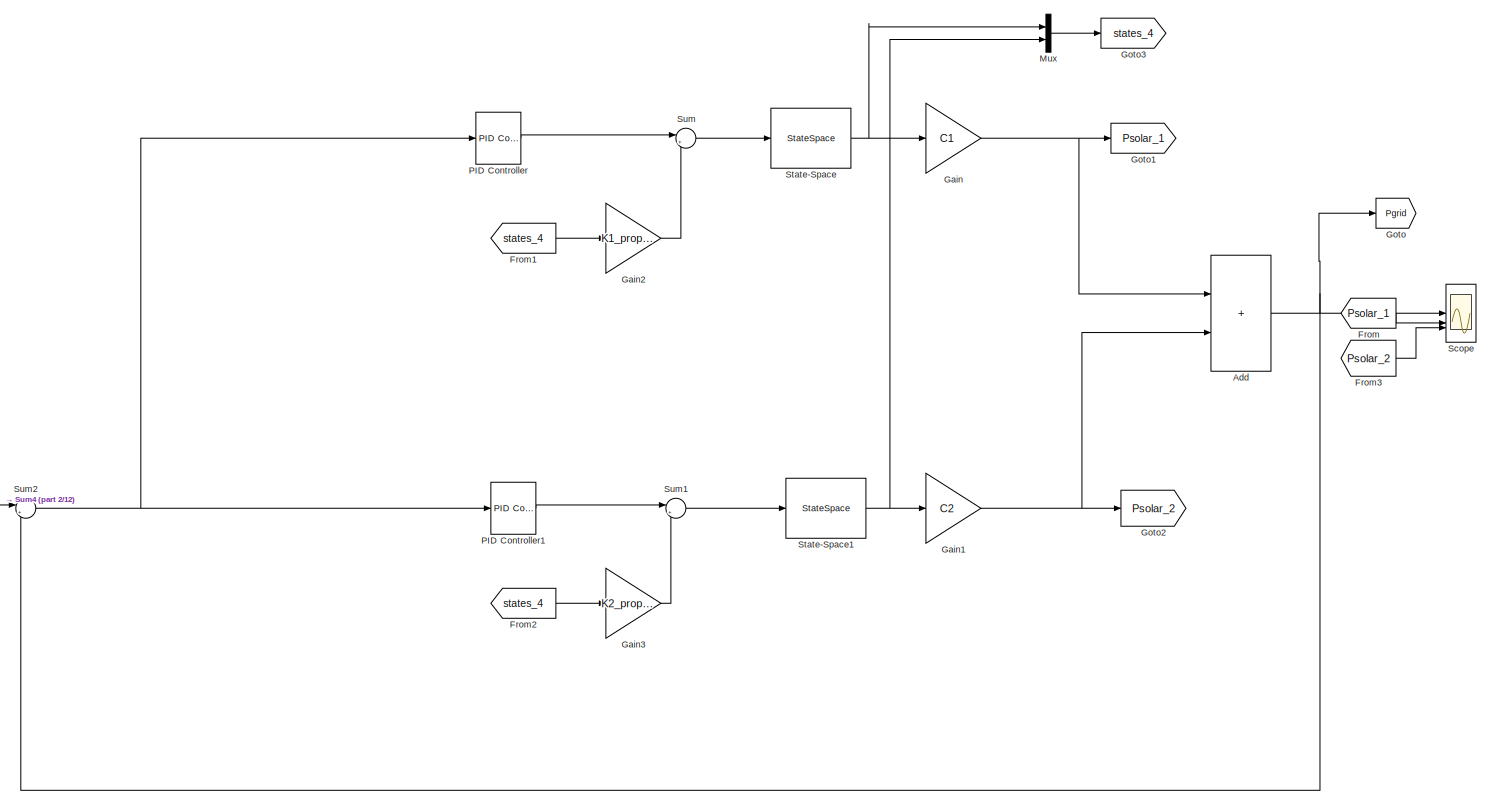
[diagram: root canvas - part 1/12, top center region]
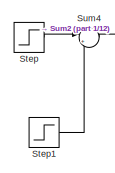
[diagram: root canvas - part 2/12, top left region]
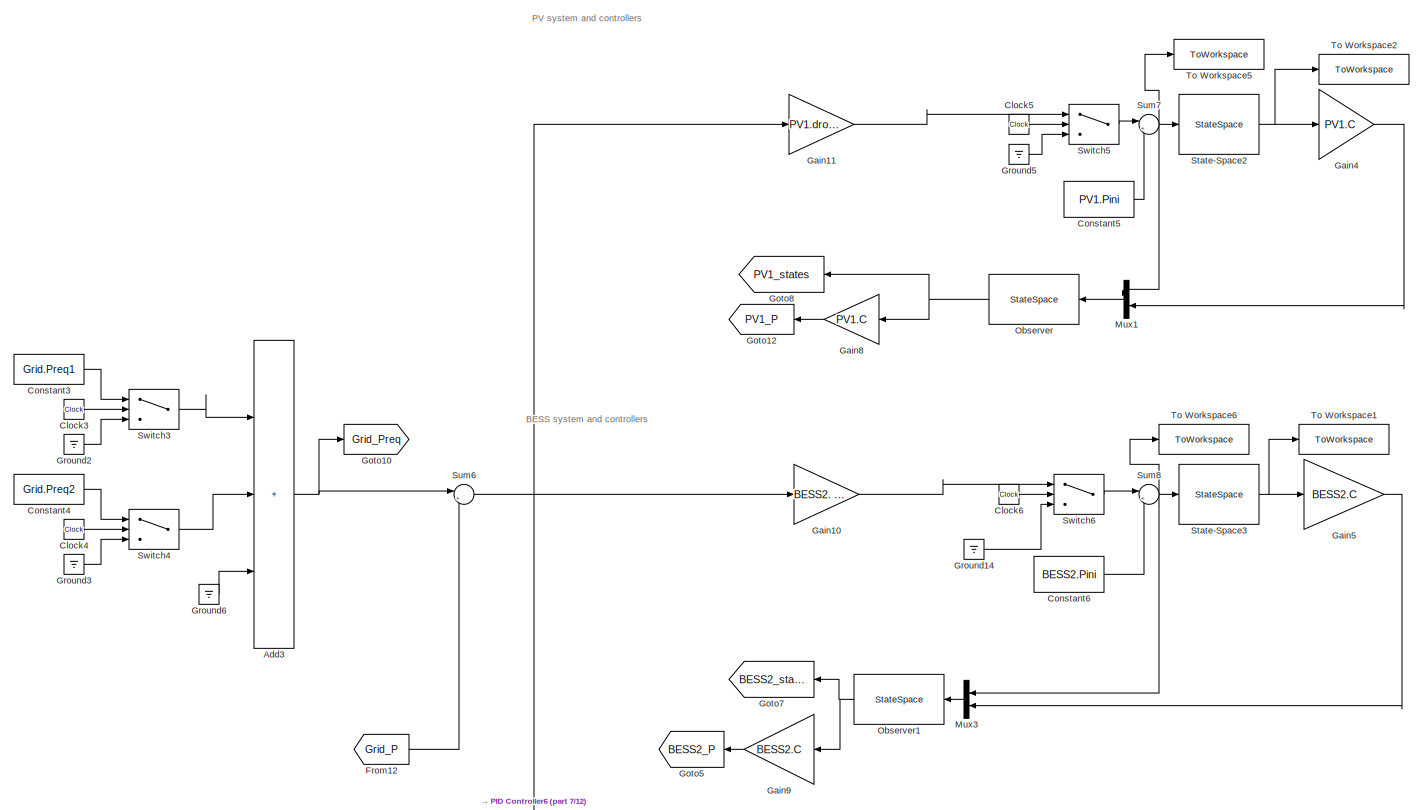
[diagram: root canvas - part 3/12, central region]
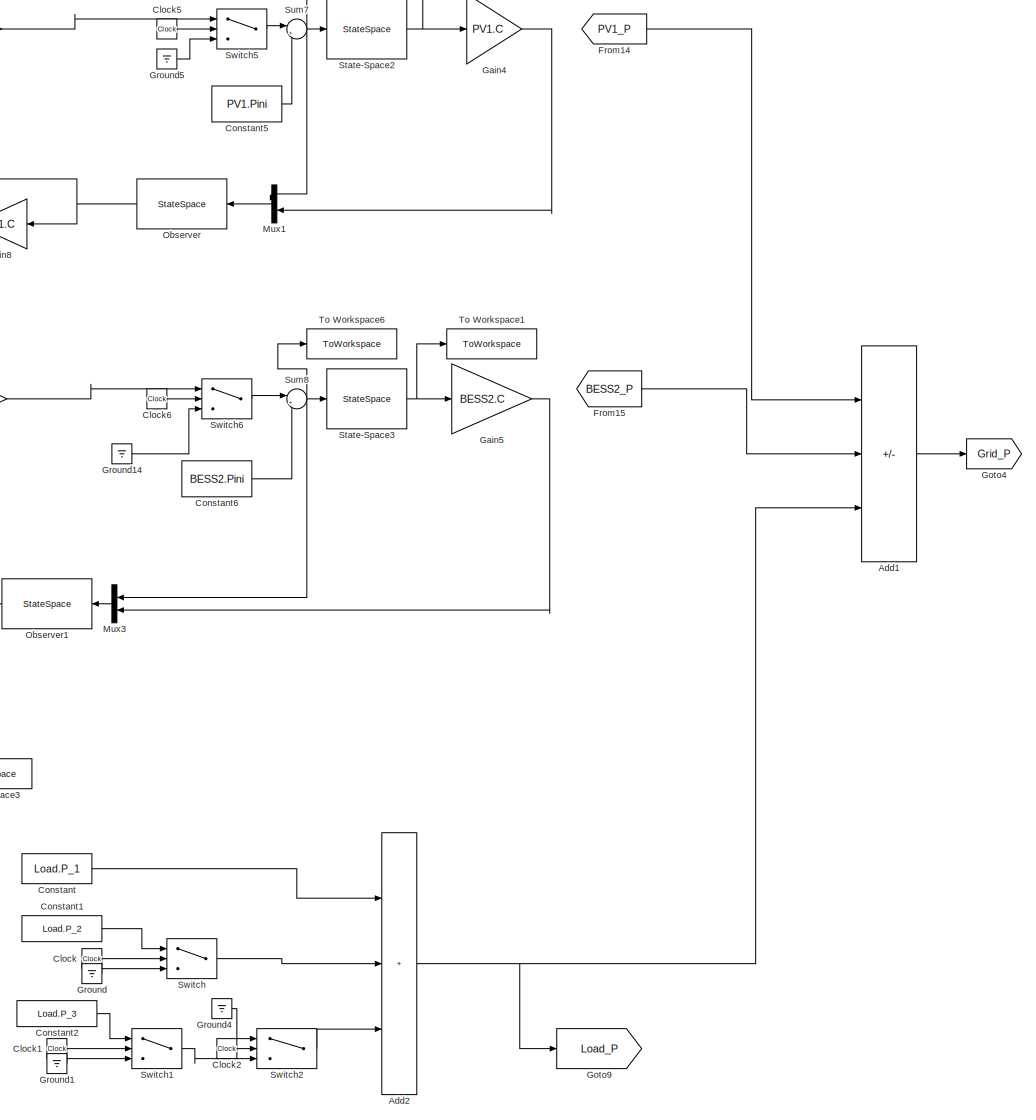
[diagram: root canvas - part 4/12, central region]
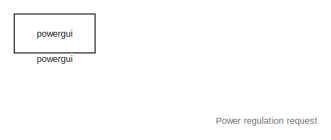
[diagram: root canvas - part 5/12, middle left region]
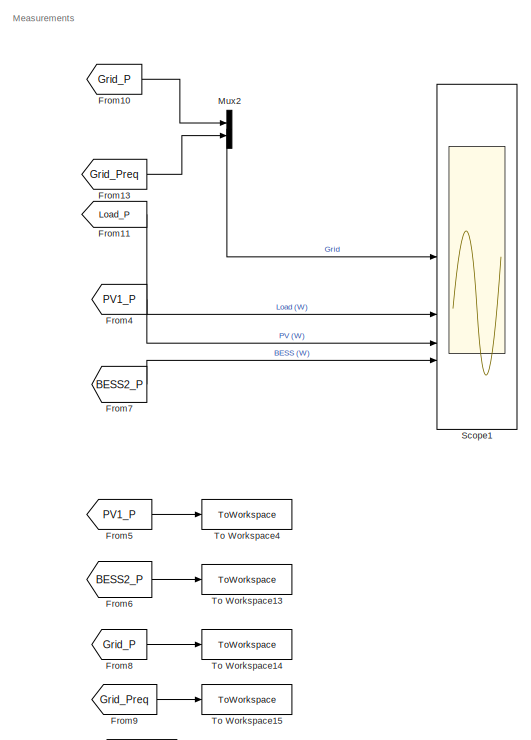
[diagram: root canvas - part 6/12, middle right region]
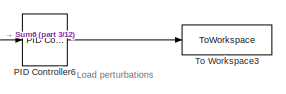
[diagram: root canvas - part 7/12, central region]
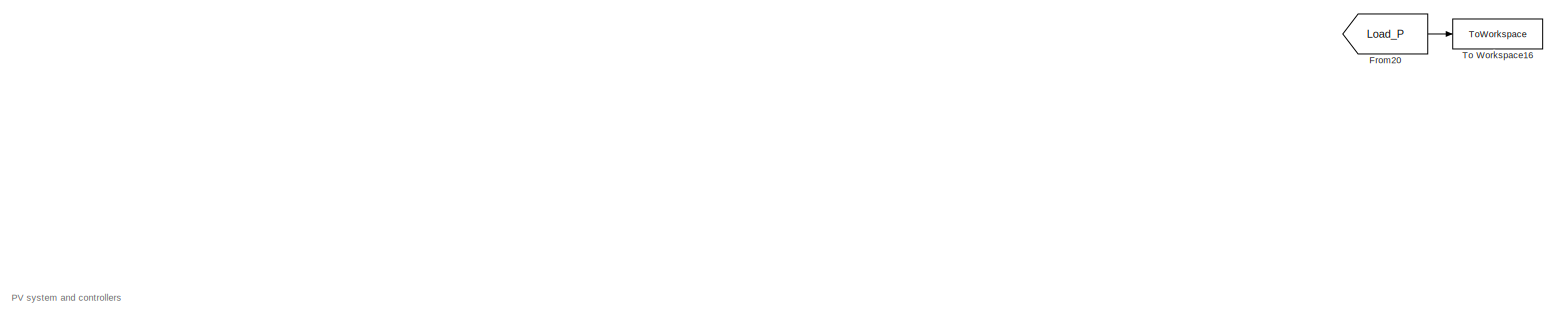
[diagram: root canvas - part 8/12, central region]
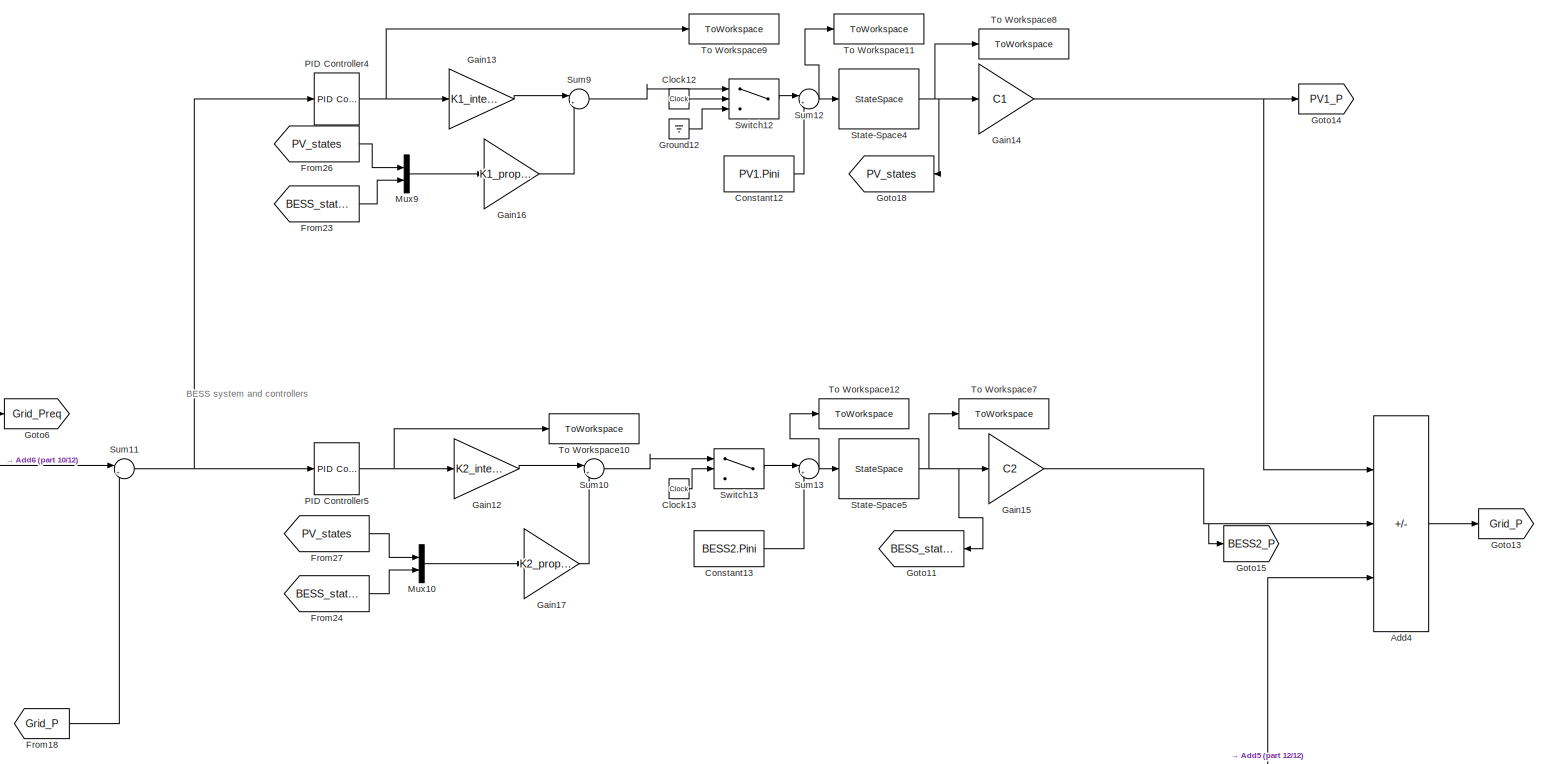
[diagram: root canvas - part 9/12, bottom center region]
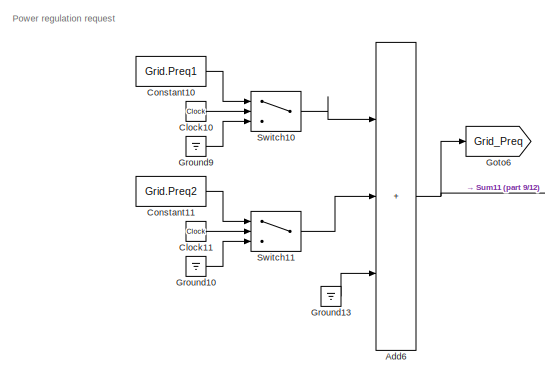
[diagram: root canvas - part 10/12, bottom left region]
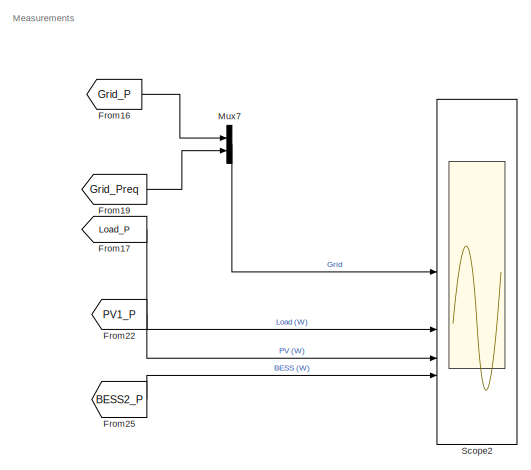
[diagram: root canvas - part 11/12, bottom right region]
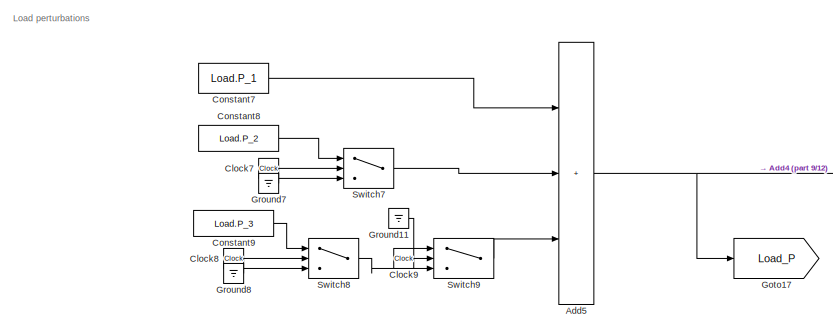
[diagram: root canvas - part 12/12, bottom center region]
MODEL slx_a68175e8a0a5
KIND model
CONFIG AbsTol = auto
CONFIG EnableMultiTasking = off
CONFIG FixedStep = auto
CONFIG MaxStep = auto
CONFIG MinStep = auto
CONFIG RelTol = 1e-3
CONFIG SampleTimeConstraint = Unconstrained
CONFIG SolverName = VariableStepAuto
CONFIG StartTime = 0.0
CONFIG StopTime = 6
BLOCK [Sum] Add
  Commented = on
  IconShape = rectangular
BLOCK [Sum] Add1
  IconShape = rectangular
  Inputs = ++-
BLOCK [Sum] Add2
  IconShape = rectangular
  Inputs = +++
BLOCK [Sum] Add3
  IconShape = rectangular
  Inputs = +++
BLOCK [Sum] Add4
  Commented = on
  IconShape = rectangular
  Inputs = ++-
BLOCK [Sum] Add5
  Commented = on
  IconShape = rectangular
  Inputs = +++
BLOCK [Sum] Add6
  Commented = on
  IconShape = rectangular
  Inputs = +++
BLOCK [Clock] Clock
BLOCK [Clock] Clock1
BLOCK [Clock] Clock10
  Commented = on
BLOCK [Clock] Clock11
  Commented = on
BLOCK [Clock] Clock12
  Commented = on
BLOCK [Clock] Clock13
  Commented = on
BLOCK [Clock] Clock2
BLOCK [Clock] Clock3
BLOCK [Clock] Clock4
BLOCK [Clock] Clock5
BLOCK [Clock] Clock6
BLOCK [Clock] Clock7
  Commented = on
BLOCK [Clock] Clock8
  Commented = on
BLOCK [Clock] Clock9
  Commented = on
BLOCK [Constant] Constant
  Value = Load.P_1
BLOCK [Constant] Constant1
  Value = Load.P_2
BLOCK [Constant] Constant10
  Commented = on
  Value = Grid.Preq1
BLOCK [Constant] Constant11
  Commented = on
  Value = Grid.Preq2
BLOCK [Constant] Constant12
  Commented = on
  Value = PV1.Pini
BLOCK [Constant] Constant13
  Commented = on
  Value = BESS2.Pini
BLOCK [Constant] Constant2
  Value = Load.P_3
BLOCK [Constant] Constant3
  Value = Grid.Preq1
BLOCK [Constant] Constant4
  Value = Grid.Preq2
BLOCK [Constant] Constant5
  Value = PV1.Pini
BLOCK [Constant] Constant6
  Value = BESS2.Pini
BLOCK [Constant] Constant7
  Commented = on
  Value = Load.P_1
BLOCK [Constant] Constant8
  Commented = on
  Value = Load.P_2
BLOCK [Constant] Constant9
  Commented = on
  Value = Load.P_3
BLOCK [From] From
  Commented = on
  GotoTag = Psolar_1
BLOCK [From] From1
  Commented = on
  GotoTag = states_4
BLOCK [From] From10
  GotoTag = Grid_P
BLOCK [From] From11
  GotoTag = Load_P
BLOCK [From] From12
  GotoTag = Grid_P
BLOCK [From] From13
  GotoTag = Grid_Preq
BLOCK [From] From14
  GotoTag = PV1_P
BLOCK [From] From15
  GotoTag = BESS2_P
BLOCK [From] From16
  Commented = on
  GotoTag = Grid_P
BLOCK [From] From17
  Commented = on
  GotoTag = Load_P
BLOCK [From] From18
  Commented = on
  GotoTag = Grid_P
BLOCK [From] From19
  Commented = on
  GotoTag = Grid_Preq
BLOCK [From] From2
  Commented = on
  GotoTag = states_4
BLOCK [From] From20
  GotoTag = Load_P
BLOCK [From] From22
  Commented = on
  GotoTag = PV1_P
BLOCK [From] From23
  Commented = on
  GotoTag = BESS_states
BLOCK [From] From24
  Commented = on
  GotoTag = BESS_states
BLOCK [From] From25
  Commented = on
  GotoTag = BESS2_P
BLOCK [From] From26
  Commented = on
  GotoTag = PV_states
BLOCK [From] From27
  Commented = on
  GotoTag = PV_states
BLOCK [From] From3
  Commented = on
  GotoTag = Psolar_2
BLOCK [From] From4
  GotoTag = PV1_P
BLOCK [From] From5
  GotoTag = PV1_P
BLOCK [From] From6
  GotoTag = BESS2_P
BLOCK [From] From7
  GotoTag = BESS2_P
BLOCK [From] From8
  GotoTag = Grid_P
BLOCK [From] From9
  GotoTag = Grid_Preq
BLOCK [Gain] Gain
  Commented = on
  Gain = C1
  Multiplication = Matrix(K*u)
BLOCK [Gain] Gain1
  Commented = on
  Gain = C2
  Multiplication = Matrix(K*u)
BLOCK [Gain] Gain10
  Gain = BESS2. droop
BLOCK [Gain] Gain11
  Gain = PV1.droop
BLOCK [Gain] Gain12
  Commented = on
  Gain = K2_integral
BLOCK [Gain] Gain13
  Commented = on
  Gain = K1_integral
BLOCK [Gain] Gain14
  Commented = on
  Gain = C1
  Multiplication = Matrix(K*u)
BLOCK [Gain] Gain15
  Commented = on
  Gain = C2
  Multiplication = Matrix(K*u)
BLOCK [Gain] Gain16
  Commented = on
  Gain = K1_proportional
  Multiplication = Matrix(K*u)
BLOCK [Gain] Gain17
  Commented = on
  Gain = K2_proportional
  Multiplication = Matrix(K*u)
BLOCK [Gain] Gain2
  Commented = on
  Gain = K1_proportional
  Multiplication = Matrix(K*u)
BLOCK [Gain] Gain3
  Commented = on
  Gain = K2_proportional
  Multiplication = Matrix(K*u)
BLOCK [Gain] Gain4
  Gain = PV1.C
  Multiplication = Matrix(K*u)
BLOCK [Gain] Gain5
  Gain = BESS2.C
  Multiplication = Matrix(K*u)
BLOCK [Gain] Gain8
  Gain = PV1.C
  Multiplication = Matrix(K*u)
BLOCK [Gain] Gain9
  Gain = BESS2.C
  Multiplication = Matrix(K*u)
BLOCK [Goto] Goto
  Commented = on
  GotoTag = Pgrid
BLOCK [Goto] Goto1
  Commented = on
  GotoTag = Psolar_1
BLOCK [Goto] Goto10
  GotoTag = Grid_Preq
BLOCK [Goto] Goto11
  Commented = on
  GotoTag = BESS_states
BLOCK [Goto] Goto12
  GotoTag = PV1_P
BLOCK [Goto] Goto13
  Commented = on
  GotoTag = Grid_P
BLOCK [Goto] Goto14
  Commented = on
  GotoTag = PV1_P
BLOCK [Goto] Goto15
  Commented = on
  GotoTag = BESS2_P
BLOCK [Goto] Goto17
  Commented = on
  GotoTag = Load_P
BLOCK [Goto] Goto18
  Commented = on
  GotoTag = PV_states
BLOCK [Goto] Goto2
  Commented = on
  GotoTag = Psolar_2
BLOCK [Goto] Goto3
  Commented = on
  GotoTag = states_4
BLOCK [Goto] Goto4
  GotoTag = Grid_P
BLOCK [Goto] Goto5
  GotoTag = BESS2_P
BLOCK [Goto] Goto6
  Commented = on
  GotoTag = Grid_Preq
BLOCK [Goto] Goto7
  GotoTag = BESS2_states
BLOCK [Goto] Goto8
  GotoTag = PV1_states
BLOCK [Goto] Goto9
  GotoTag = Load_P
BLOCK [Ground] Ground
BLOCK [Ground] Ground1
BLOCK [Ground] Ground10
  Commented = on
BLOCK [Ground] Ground11
  Commented = on
BLOCK [Ground] Ground12
  Commented = on
BLOCK [Ground] Ground13
  Commented = on
BLOCK [Ground] Ground14
BLOCK [Ground] Ground2
BLOCK [Ground] Ground3
BLOCK [Ground] Ground4
BLOCK [Ground] Ground5
BLOCK [Ground] Ground6
BLOCK [Ground] Ground7
  Commented = on
BLOCK [Ground] Ground8
  Commented = on
BLOCK [Ground] Ground9
  Commented = on
BLOCK [Mux] Mux
  Commented = on
  DisplayOption = bar
  Inputs = 2
BLOCK [Mux] Mux1
  DisplayOption = bar
  Inputs = 2
BLOCK [Mux] Mux10
  Commented = on
  DisplayOption = bar
  Inputs = 2
BLOCK [Mux] Mux2
  DisplayOption = bar
  Inputs = 2
BLOCK [Mux] Mux3
  DisplayOption = bar
  Inputs = 2
BLOCK [Mux] Mux7
  Commented = on
  DisplayOption = bar
  Inputs = 2
BLOCK [Mux] Mux9
  Commented = on
  DisplayOption = bar
  Inputs = 2
BLOCK [StateSpace] Observer
  A = PV1.kf_As
  B = PV1.kf_Bs
  C = PV1.kf_Cs
  D = PV1.kf_Ds
  InitialCondition = 0
BLOCK [StateSpace] Observer1
  A = BESS2.kf_As
  B = BESS2.kf_Bs
  C = BESS2.kf_Cs
  D = BESS2.kf_Ds
  InitialCondition = 0
BLOCK [Reference] PID Controller  REF=slpidlib/PID Controller
  Commented = on
  LibrarySourceBlock = simulink/Continuous/PID Controller
  SourceBlock = slpidlib/PID Controller
  SourceType = PID 1dof
BLOCK [Reference] PID Controller1  REF=slpidlib/PID Controller
  Commented = on
  LibrarySourceBlock = simulink/Continuous/PID Controller
  SourceBlock = slpidlib/PID Controller
  SourceType = PID 1dof
BLOCK [Reference] PID Controller4  REF=slpidlib/PID Controller
  Commented = on
  LibrarySourceBlock = simulink/Continuous/PID Controller
  SourceBlock = slpidlib/PID Controller
  SourceType = PID 1dof
BLOCK [Reference] PID Controller5  REF=slpidlib/PID Controller
  Commented = on
  LibrarySourceBlock = simulink/Continuous/PID Controller
  SourceBlock = slpidlib/PID Controller
  SourceType = PID 1dof
BLOCK [Reference] PID Controller6  REF=slpidlib/PID Controller
  LibrarySourceBlock = simulink/Continuous/PID Controller
  SourceBlock = slpidlib/PID Controller
  SourceType = PID 1dof
BLOCK [Scope] Scope
  Commented = on
  Floating = off
  NumInputPorts = 3
  ScopeSpecificationString = Simulink.scopes.TimeScopeBlockCfg('CurrentConfiguration', extmgr.ConfigurationSet(extmgr.Configuration('Core','General UI',true),extmgr.Configuration('Core','Source UI',true),extmgr.Configuration('Sources','WiredSimulink',true),extmgr.Configuration('Visuals','Time Domain',true,'SerializedDisplays',{struct('MinYLimReal','-249795.72347','MaxYLimReal','2248161.51121','YLabelReal','','MinYLimMag','   ...<+2741ch>
BLOCK [Scope] Scope1
  Floating = off
  NumInputPorts = 4
  ScopeSpecificationString = Simulink.scopes.TimeScopeBlockCfg('CurrentConfiguration', extmgr.ConfigurationSet(extmgr.Configuration('Core','General UI',true,'FigureColor',[1 1 1]),extmgr.Configuration('Core','Source UI',true),extmgr.Configuration('Sources','WiredSimulink',true,'DataLoggingVariableName','ScopeData1'),extmgr.Configuration('Visuals','Time Domain',true,'SerializedDisplays',{struct('MinYLimReal','-7731770.89309','...<+4946ch>
BLOCK [Scope] Scope2
  Commented = on
  Floating = off
  NumInputPorts = 4
  ScopeSpecificationString = Simulink.scopes.TimeScopeBlockCfg('CurrentConfiguration', extmgr.ConfigurationSet(extmgr.Configuration('Core','General UI',true),extmgr.Configuration('Core','Source UI',true),extmgr.Configuration('Sources','WiredSimulink',true,'DataLoggingVariableName','ScopeData1'),extmgr.Configuration('Visuals','Time Domain',true,'SerializedDisplays',{struct('MinYLimReal','-7624859.51592','MaxYLimReal','18623735...<+3750ch>
BLOCK [StateSpace] State-Space
  A = A1
  B = [1; 0]
  C = [1 0;0 1]
  Commented = on
  D = zeros(2,1)
  InitialCondition = 0
BLOCK [StateSpace] State-Space1
  A = A2
  B = [1; 0]
  C = [1 0;0 1]
  Commented = on
  D = zeros(2,1)
  InitialCondition = 0
BLOCK [StateSpace] State-Space2
  A = PV1.A
  B = PV1.B
  C = eye(2,2)
  D = zeros(2,1)
  InitialCondition = 0
BLOCK [StateSpace] State-Space3
  A = BESS2.A
  B = BESS2.B
  C = eye(2,2)
  D = zeros(2,1)
  InitialCondition = 0
BLOCK [StateSpace] State-Space4
  A = A1
  B = B1
  C = eye(2,2)
  Commented = on
  D = zeros(2,1)
  InitialCondition = 0
BLOCK [StateSpace] State-Space5
  A = A2
  B = B2
  C = eye(2,2)
  Commented = on
  D = zeros(2,1)
  InitialCondition = 0
BLOCK [Step] Step
  After = 1.5*10^6
  Commented = on
  SampleTime = 0
BLOCK [Step] Step1
  After = 0.5*10^6
  Commented = on
  SampleTime = 0
  Time = 15
BLOCK [Sum] Sum
  Commented = on
  Inputs = |++
BLOCK [Sum] Sum1
  Commented = on
  Inputs = |++
BLOCK [Sum] Sum10
  Commented = on
  Inputs = |++
BLOCK [Sum] Sum11
  Commented = on
  Inputs = |+-
BLOCK [Sum] Sum12
  Commented = on
  Inputs = |++
BLOCK [Sum] Sum13
  Commented = on
  Inputs = |++
BLOCK [Sum] Sum2
  Commented = on
  Inputs = |+-
BLOCK [Sum] Sum4
  Commented = on
  Inputs = |++
BLOCK [Sum] Sum6
  Inputs = |+-
BLOCK [Sum] Sum7
  Inputs = |++
BLOCK [Sum] Sum8
  Inputs = |++
BLOCK [Sum] Sum9
  Commented = on
  Inputs = |++
BLOCK [Switch] Switch
  InputSameDT = off
  SaturateOnIntegerOverflow = off
  Threshold = Load.sw2_closed
BLOCK [Switch] Switch1
  InputSameDT = off
  SaturateOnIntegerOverflow = off
  Threshold = Load.sw3_closed
BLOCK [Switch] Switch10
  Commented = on
  InputSameDT = off
  SaturateOnIntegerOverflow = off
  Threshold = Grid.Time1
BLOCK [Switch] Switch11
  Commented = on
  InputSameDT = off
  SaturateOnIntegerOverflow = off
  Threshold = Grid.Time2
BLOCK [Switch] Switch12
  Commented = on
  InputSameDT = off
  SaturateOnIntegerOverflow = off
  Threshold = Grid.Time0
BLOCK [Switch] Switch13
  Commented = on
  InputSameDT = off
  SaturateOnIntegerOverflow = off
  Threshold = Grid.Time0
BLOCK [Switch] Switch2
  InputSameDT = off
  SaturateOnIntegerOverflow = off
  Threshold = Load.sw3_open
BLOCK [Switch] Switch3
  InputSameDT = off
  SaturateOnIntegerOverflow = off
  Threshold = Grid.Time1-0.001
BLOCK [Switch] Switch4
  InputSameDT = off
  SaturateOnIntegerOverflow = off
  Threshold = Grid.Time2
BLOCK [Switch] Switch5
  InputSameDT = off
  SaturateOnIntegerOverflow = off
  Threshold = Grid.Time1
BLOCK [Switch] Switch6
  InputSameDT = off
  SaturateOnIntegerOverflow = off
  Threshold = Grid.Time1
BLOCK [Switch] Switch7
  Commented = on
  InputSameDT = off
  SaturateOnIntegerOverflow = off
  Threshold = Load.sw2_closed
BLOCK [Switch] Switch8
  Commented = on
  InputSameDT = off
  SaturateOnIntegerOverflow = off
  Threshold = Load.sw3_closed
BLOCK [Switch] Switch9
  Commented = on
  InputSameDT = off
  SaturateOnIntegerOverflow = off
  Threshold = Load.sw3_open
BLOCK [ToWorkspace] To Workspace1
  FixptAsFi = on
  MaxDataPoints = inf
  SampleTime = Ts
  SaveFormat = Timeseries
  VariableName = x_bess2
BLOCK [ToWorkspace] To Workspace10
  Commented = on
  FixptAsFi = on
  MaxDataPoints = inf
  SampleTime = Ts
  SaveFormat = Timeseries
  VariableName = w_bess
BLOCK [ToWorkspace] To Workspace11
  Commented = on
  FixptAsFi = on
  MaxDataPoints = inf
  SampleTime = Ts
  SaveFormat = Timeseries
  VariableName = u_pv
BLOCK [ToWorkspace] To Workspace12
  Commented = on
  FixptAsFi = on
  MaxDataPoints = inf
  SampleTime = Ts
  SaveFormat = Timeseries
  VariableName = u_bess
BLOCK [ToWorkspace] To Workspace13
  FixptAsFi = on
  MaxDataPoints = inf
  SampleTime = Ts
  SaveFormat = Timeseries
  VariableName = BESS2_P
BLOCK [ToWorkspace] To Workspace14
  FixptAsFi = on
  MaxDataPoints = inf
  SampleTime = Ts
  SaveFormat = Timeseries
  VariableName = Grid_P
BLOCK [ToWorkspace] To Workspace15
  FixptAsFi = on
  MaxDataPoints = inf
  SampleTime = Ts
  SaveFormat = Timeseries
  VariableName = Grid_Preq
BLOCK [ToWorkspace] To Workspace16
  FixptAsFi = on
  MaxDataPoints = inf
  SampleTime = Ts
  SaveFormat = Timeseries
  VariableName = Load_P
BLOCK [ToWorkspace] To Workspace2
  FixptAsFi = on
  MaxDataPoints = inf
  SampleTime = Ts
  SaveFormat = Timeseries
  VariableName = x_pv1
BLOCK [ToWorkspace] To Workspace3
  FixptAsFi = on
  MaxDataPoints = inf
  SampleTime = Ts
  SaveFormat = Timeseries
  VariableName = w
BLOCK [ToWorkspace] To Workspace4
  FixptAsFi = on
  MaxDataPoints = inf
  SampleTime = Ts
  SaveFormat = Timeseries
  VariableName = PV1_P
BLOCK [ToWorkspace] To Workspace5
  FixptAsFi = on
  MaxDataPoints = inf
  SampleTime = Ts
  SaveFormat = Timeseries
  VariableName = u_pv1
BLOCK [ToWorkspace] To Workspace6
  FixptAsFi = on
  MaxDataPoints = inf
  SampleTime = Ts
  SaveFormat = Timeseries
  VariableName = u_bess2
BLOCK [ToWorkspace] To Workspace7
  Commented = on
  FixptAsFi = on
  MaxDataPoints = inf
  SampleTime = Ts
  SaveFormat = Timeseries
  VariableName = x_bess
BLOCK [ToWorkspace] To Workspace8
  Commented = on
  FixptAsFi = on
  MaxDataPoints = inf
  SampleTime = Ts
  SaveFormat = Timeseries
  VariableName = x_pv
BLOCK [ToWorkspace] To Workspace9
  Commented = on
  FixptAsFi = on
  MaxDataPoints = inf
  SampleTime = Ts
  SaveFormat = Timeseries
  VariableName = w_pv
BLOCK [Reference] powergui  REF=spspowerguiLib/powergui
  LibrarySourceBlock = sps_lib/powergui
  Priority = 1
  SourceBlock = spspowerguiLib/powergui
  SourceType = PSB option menu block
ANNOTATION (root): BESS system and controllers
ANNOTATION (root): Load perturbations
ANNOTATION (root): Measurements
ANNOTATION (root): PV system and controllers
ANNOTATION (root): Power regulation request
LINE Add1:1 -> Goto4:1
NET Add2:1 -> Add1:3, Goto9:1
NET Add3:1 -> Goto10:1, Sum6:1
LINE Add4:1 -> Goto13:1
NET Add5:1 -> Add4:3, Goto17:1
NET Add6:1 -> Goto6:1, Sum11:1
NET Add:1 -> Goto:1, Scope:1, Sum2:2
LINE Clock10:1 -> Switch10:2
LINE Clock11:1 -> Switch11:2
LINE Clock12:1 -> Switch12:2
LINE Clock13:1 -> Switch13:2
LINE Clock1:1 -> Switch1:2
LINE Clock2:1 -> Switch2:2
LINE Clock3:1 -> Switch3:2
LINE Clock4:1 -> Switch4:2
LINE Clock5:1 -> Switch5:2
LINE Clock6:1 -> Switch6:2
LINE Clock7:1 -> Switch7:2
LINE Clock8:1 -> Switch8:2
LINE Clock9:1 -> Switch9:2
LINE Clock:1 -> Switch:2
LINE Constant10:1 -> Switch10:1
LINE Constant11:1 -> Switch11:1
LINE Constant12:1 -> Sum12:2
LINE Constant13:1 -> Sum13:2
LINE Constant1:1 -> Switch:1
LINE Constant2:1 -> Switch1:1
LINE Constant3:1 -> Switch3:1
LINE Constant4:1 -> Switch4:1
LINE Constant5:1 -> Sum7:2
LINE Constant6:1 -> Sum8:2
LINE Constant7:1 -> Add5:1
LINE Constant8:1 -> Switch7:1
LINE Constant9:1 -> Switch8:1
LINE Constant:1 -> Add2:1
LINE From10:1 -> Mux2:1
LINE From11:1 -> Scope1:2
LINE From12:1 -> Sum6:2
LINE From13:1 -> Mux2:2
LINE From14:1 -> Add1:1
LINE From15:1 -> Add1:2
LINE From16:1 -> Mux7:1
LINE From17:1 -> Scope2:2
LINE From18:1 -> Sum11:2
LINE From19:1 -> Mux7:2
LINE From1:1 -> Gain2:1
LINE From20:1 -> To Workspace16:1
LINE From22:1 -> Scope2:3
LINE From23:1 -> Mux9:2
LINE From24:1 -> Mux10:2
LINE From25:1 -> Scope2:4
LINE From26:1 -> Mux9:1
LINE From27:1 -> Mux10:1
LINE From2:1 -> Gain3:1
LINE From3:1 -> Scope:3
LINE From4:1 -> Scope1:3
LINE From5:1 -> To Workspace4:1
LINE From6:1 -> To Workspace13:1
LINE From7:1 -> Scope1:4
LINE From8:1 -> To Workspace14:1
LINE From9:1 -> To Workspace15:1
LINE From:1 -> Scope:2
LINE Gain10:1 -> Switch6:1
LINE Gain11:1 -> Switch5:1
LINE Gain12:1 -> Sum10:1
LINE Gain13:1 -> Sum9:1
NET Gain14:1 -> Add4:1, Goto14:1
NET Gain15:1 -> Add4:2, Goto15:1
LINE Gain16:1 -> Sum9:2
LINE Gain17:1 -> Sum10:2
NET Gain1:1 -> Add:2, Goto2:1
LINE Gain2:1 -> Sum:2
LINE Gain3:1 -> Sum1:2
LINE Gain4:1 -> Mux1:2
LINE Gain5:1 -> Mux3:2
LINE Gain8:1 -> Goto12:1
LINE Gain9:1 -> Goto5:1
NET Gain:1 -> Add:1, Goto1:1
LINE Ground10:1 -> Switch11:3
LINE Ground11:1 -> Switch9:1
LINE Ground12:1 -> Switch12:3
LINE Ground13:1 -> Add6:3
LINE Ground14:1 -> Switch6:3
LINE Ground1:1 -> Switch1:3
LINE Ground2:1 -> Switch3:3
LINE Ground3:1 -> Switch4:3
LINE Ground4:1 -> Switch2:1
LINE Ground5:1 -> Switch5:3
LINE Ground6:1 -> Add3:3
LINE Ground7:1 -> Switch7:3
LINE Ground8:1 -> Switch8:3
LINE Ground9:1 -> Switch10:3
LINE Ground:1 -> Switch:3
LINE Mux10:1 -> Gain17:1
LINE Mux1:1 -> Observer:1
LINE Mux2:1 -> Scope1:1
LINE Mux3:1 -> Observer1:1
LINE Mux7:1 -> Scope2:1
LINE Mux9:1 -> Gain16:1
LINE Mux:1 -> Goto3:1
NET Observer1:1 -> Gain9:1, Goto7:1
NET Observer:1 -> Gain8:1, Goto8:1
LINE PID Controller1:1 -> Sum1:1
NET PID Controller4:1 -> Gain13:1, To Workspace9:1
NET PID Controller5:1 -> Gain12:1, To Workspace10:1
LINE PID Controller6:1 -> To Workspace3:1
LINE PID Controller:1 -> Sum:1
NET State-Space1:1 -> Gain1:1, Mux:2
NET State-Space2:1 -> Gain4:1, To Workspace2:1
NET State-Space3:1 -> Gain5:1, To Workspace1:1
NET State-Space4:1 -> Gain14:1, Goto18:1, To Workspace8:1
NET State-Space5:1 -> Gain15:1, Goto11:1, To Workspace7:1
NET State-Space:1 -> Gain:1, Mux:1
LINE Step1:1 -> Sum4:2
LINE Step:1 -> Sum4:1
LINE Sum10:1 -> Switch13:1
NET Sum11:1 -> PID Controller4:1, PID Controller5:1
NET Sum12:1 -> State-Space4:1, To Workspace11:1
NET Sum13:1 -> State-Space5:1, To Workspace12:1
LINE Sum1:1 -> State-Space1:1
NET Sum2:1 -> PID Controller1:1, PID Controller:1
LINE Sum4:1 -> Sum2:1
NET Sum6:1 -> Gain10:1, Gain11:1, PID Controller6:1
NET Sum7:1 -> Mux1:1, State-Space2:1, To Workspace5:1
NET Sum8:1 -> Mux3:1, State-Space3:1, To Workspace6:1
LINE Sum9:1 -> Switch12:1
LINE Sum:1 -> State-Space:1
LINE Switch10:1 -> Add6:1
LINE Switch11:1 -> Add6:2
LINE Switch12:1 -> Sum12:1
LINE Switch13:1 -> Sum13:1
LINE Switch1:1 -> Switch2:3
LINE Switch2:1 -> Add2:3
LINE Switch3:1 -> Add3:1
LINE Switch4:1 -> Add3:2
LINE Switch5:1 -> Sum7:1
LINE Switch6:1 -> Sum8:1
LINE Switch7:1 -> Add5:2
LINE Switch8:1 -> Switch9:3
LINE Switch9:1 -> Add5:3
LINE Switch:1 -> Add2:2
note: NET lines group one-source signal fan-out (src -> all destinations, sorted); 1:1 wires keep LINE
